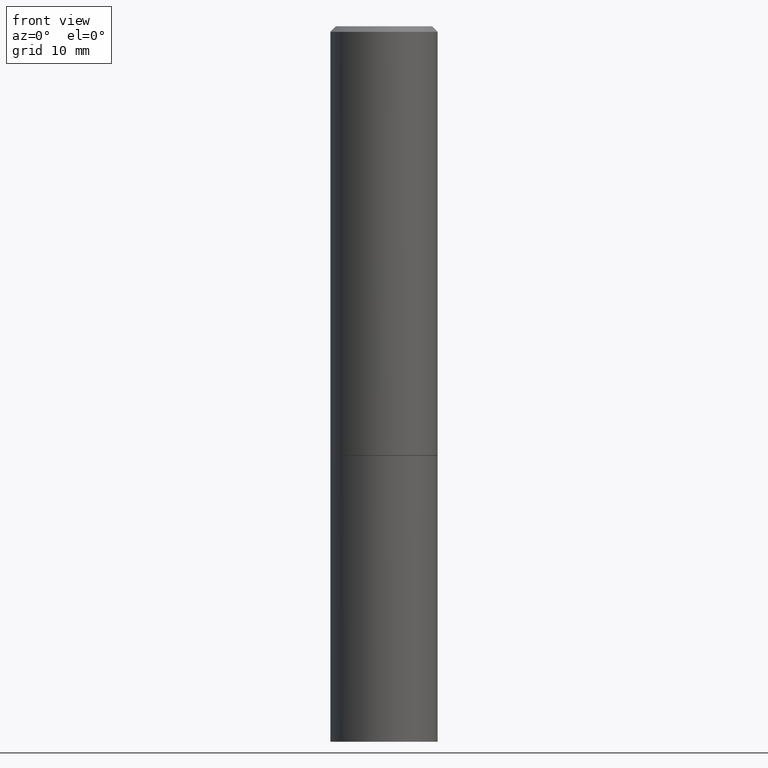
[diagram: clean part render]
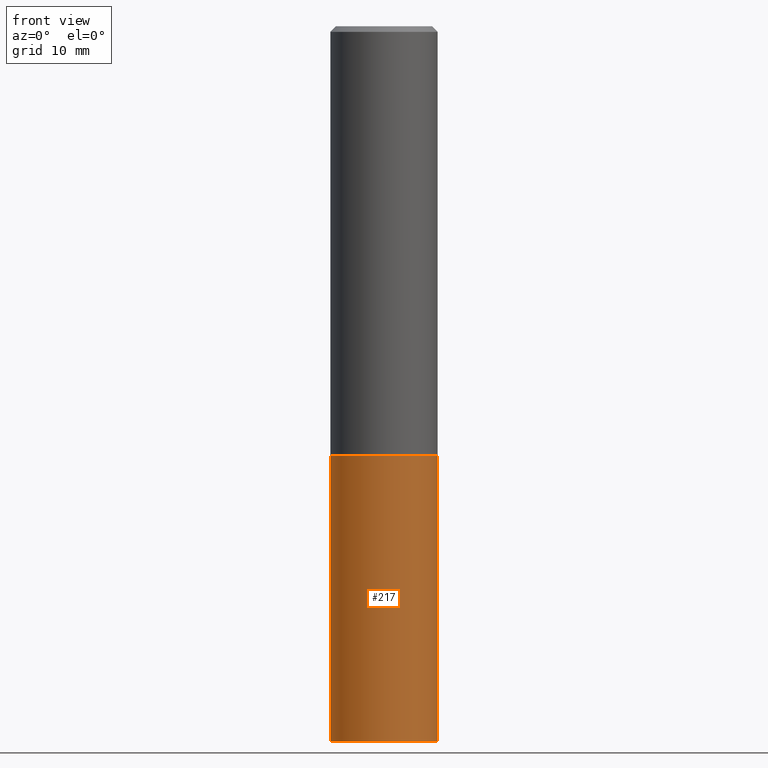
[diagram: same view with one face highlighted and labeled with its STEP entity id]
A machine part, front view. The second image highlights one B-rep face of the part: STEP entity #217.
In plain terms, the highlighted cylindrical surface (partial cylindrical patch) has radius 4.7625 mm, axis along (-0, 0, 1).
Its self-contained STEP definition (entity closure, byte-faithful):
#2 = VERTEX_POINT ( 'NONE', #236 ) ;
#13 = DIRECTION ( 'NONE',  ( 1.000000000000000000, -6.982962677686266711E-15, 0.000000000000000000 ) ) ;
#27 = CARTESIAN_POINT ( 'NONE',  ( 0.1875000000000000278, -6.546527510330893974E-15, -1.500000000000000222 ) ) ;
#44 = CARTESIAN_POINT ( 'NONE',  ( 0.1875000000000000278, -1.309305502066175008E-15, 9.142831454617381013E-30 ) ) ;
#55 = DIRECTION ( 'NONE',  ( 1.000000000000000000, -6.982962677686266711E-15, 0.000000000000000000 ) ) ;
#58 = CARTESIAN_POINT ( 'NONE',  ( 0.1875000000000000278, -1.003800884917403995E-14, -2.500000000000000000 ) ) ;
#62 = DIRECTION ( 'NONE',  ( 1.000000000000000000, -6.982962677686265922E-15, 4.876176775795935793E-29 ) ) ;
#64 = LINE ( 'NONE', #213, #291 ) ;
#81 = VERTEX_POINT ( 'NONE', #294 ) ;
#87 = EDGE_CURVE ( 'NONE', #363, #354, #343, .T. ) ;
#93 = AXIS2_PLACEMENT_3D ( 'NONE', #146, #362, #62 ) ;
#95 = CYLINDRICAL_SURFACE ( 'NONE', #93, 0.1875000000000000278 ) ;
#100 = DIRECTION ( 'NONE',  ( -2.445468806185136877E-29, 3.491481338843145188E-15, 1.000000000000000000 ) ) ;
#111 = ORIENTED_EDGE ( 'NONE', *, *, #223, .F. ) ;
#123 = EDGE_CURVE ( 'NONE', #2, #363, #234, .T. ) ;
#133 = CIRCLE ( 'NONE', #153, 0.1875000000000000278 ) ;
#145 = DIRECTION ( 'NONE',  ( -2.445468806185136597E-29, 3.491481338843145583E-15, 1.000000000000000000 ) ) ;
#146 = CARTESIAN_POINT ( 'NONE',  ( 0.000000000000000000, 0.000000000000000000, 0.000000000000000000 ) ) ;
#153 = AXIS2_PLACEMENT_3D ( 'NONE', #333, #145, #55 ) ;
#173 = ORIENTED_EDGE ( 'NONE', *, *, #87, .T. ) ;
#176 = DIRECTION ( 'NONE',  ( -2.445468806185136877E-29, 3.491481338843145188E-15, 1.000000000000000000 ) ) ;
#194 = CARTESIAN_POINT ( 'NONE',  ( 6.113672015462842613E-29, -8.728703347107864943E-15, -2.500000000000000000 ) ) ;
#213 = CARTESIAN_POINT ( 'NONE',  ( -0.1875000000000000278, 1.332267629550188046E-15, -9.223003294227947991E-30 ) ) ;
#217 = ADVANCED_FACE ( 'NONE', ( #341 ), #95, .T. ) ;
#223 = EDGE_CURVE ( 'NONE', #2, #81, #64, .T. ) ;
#234 = CIRCLE ( 'NONE', #307, 0.1875000000000000278 ) ;
#236 = CARTESIAN_POINT ( 'NONE',  ( -0.1875000000000000278, -5.650695048136103317E-15, -2.500000000000000000 ) ) ;
#268 = DIRECTION ( 'NONE',  ( -2.445468806185136597E-29, 3.491481338843145583E-15, 1.000000000000000000 ) ) ;
#291 = VECTOR ( 'NONE', #176, 39.37007874015748143 ) ;
#294 = CARTESIAN_POINT ( 'NONE',  ( -0.1875000000000000278, -5.650695048136103317E-15, -1.500000000000000222 ) ) ;
#307 = AXIS2_PLACEMENT_3D ( 'NONE', #194, #268, #13 ) ;
#314 = VECTOR ( 'NONE', #100, 39.37007874015748143 ) ;
#326 = EDGE_LOOP ( 'NONE', ( #111, #331, #173, #338 ) ) ;
#331 = ORIENTED_EDGE ( 'NONE', *, *, #123, .T. ) ;
#333 = CARTESIAN_POINT ( 'NONE',  ( 3.668203209277704895E-29, -5.237222008264718177E-15, -1.500000000000000222 ) ) ;
#338 = ORIENTED_EDGE ( 'NONE', *, *, #339, .F. ) ;
#339 = EDGE_CURVE ( 'NONE', #81, #354, #133, .T. ) ;
#341 = FACE_OUTER_BOUND ( 'NONE', #326, .T. ) ;
#343 = LINE ( 'NONE', #44, #314 ) ;
#354 = VERTEX_POINT ( 'NONE', #27 ) ;
#362 = DIRECTION ( 'NONE',  ( -2.445468806185136597E-29, 3.491481338843145583E-15, 1.000000000000000000 ) ) ;
#363 = VERTEX_POINT ( 'NONE', #58 ) ;